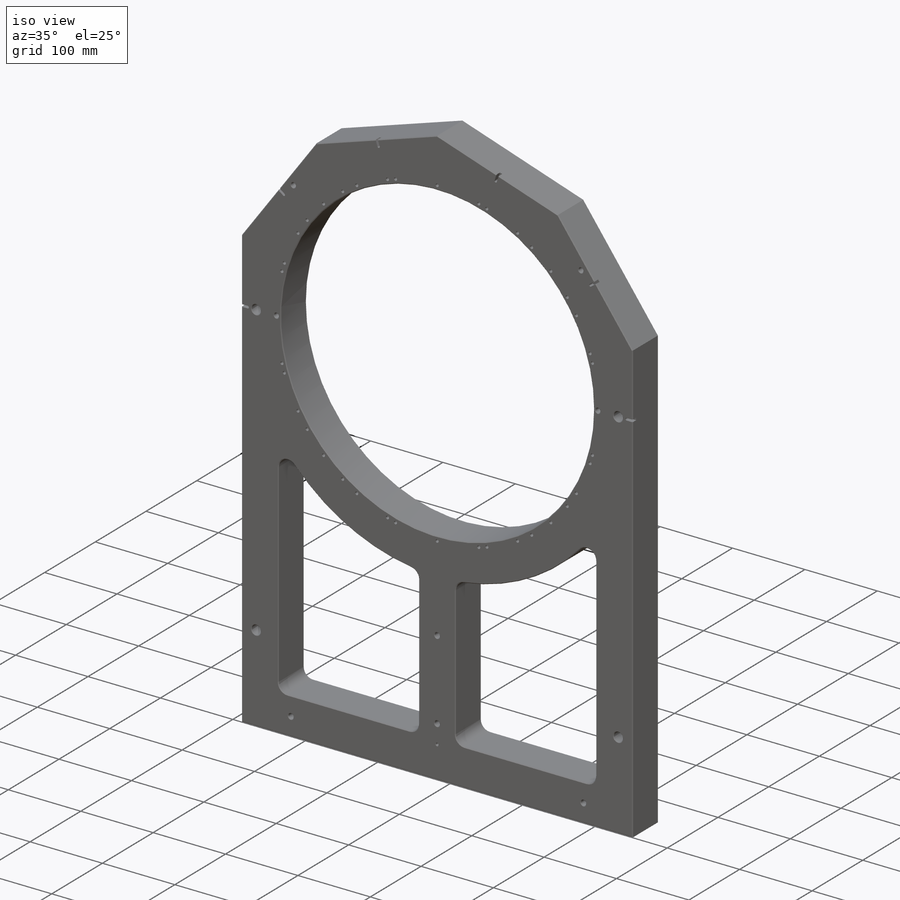
[diagram: iso view]
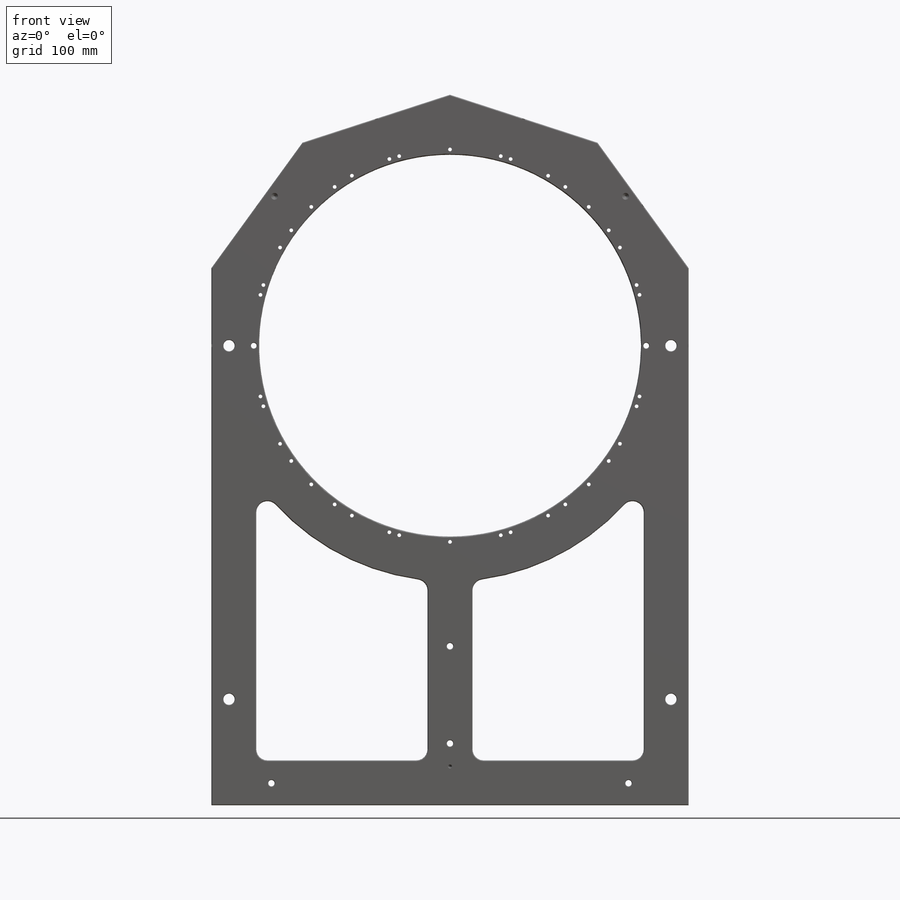
[diagram: front view]
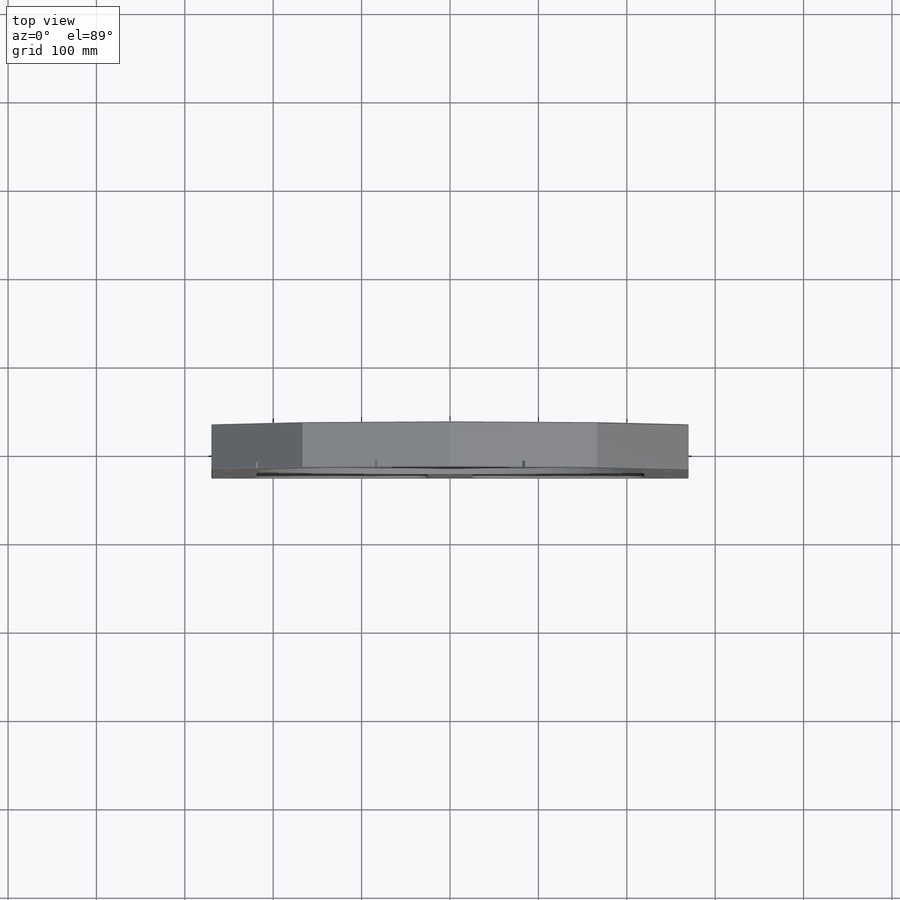
[diagram: top view]
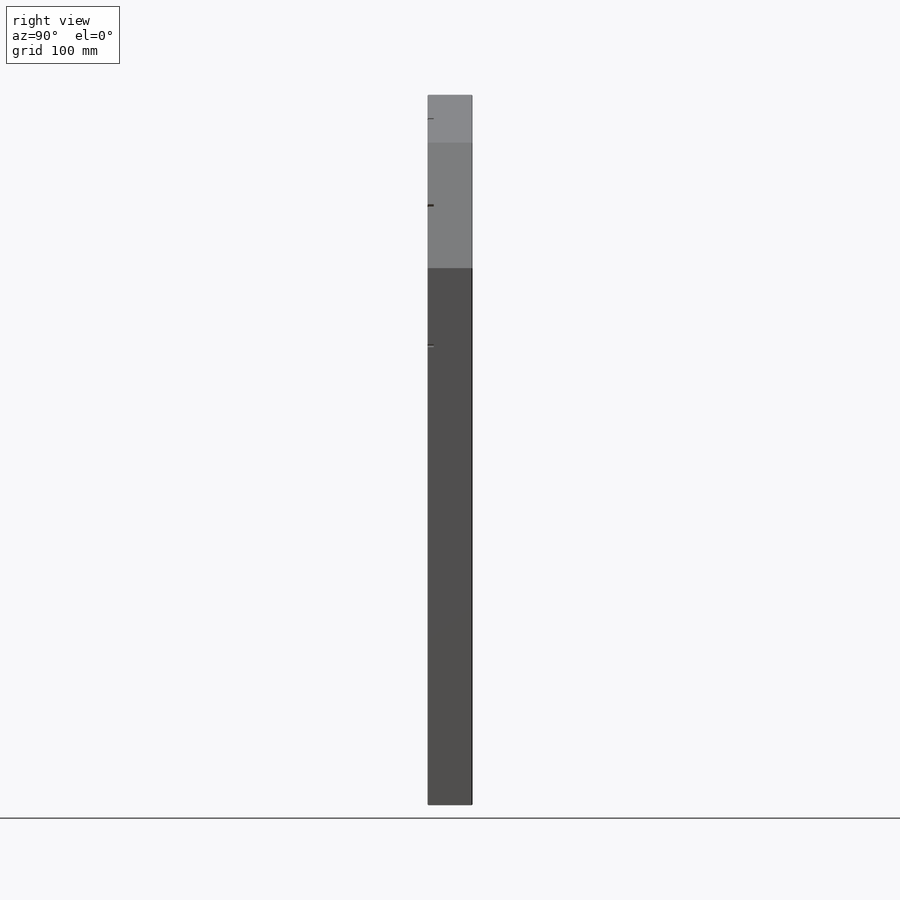
[diagram: right view]
SOLIDWORKS PART (.sldprt)
format: sldprt  version: not decoded by parser v0  size: 2,588,160 bytes
history: native  units: mm
features: sketch x43, hole x11, cut_extrude x8, thread x7, chamfer x4, pattern_circular x4, mirror x3, fillet x2, material x1, extrude x1 (+11 scaffold rows collapsed)
feature tree (95):
  scaffold x11  (default folders/planes/origin — collapsed)
  material  "6061 Alloy"
  sketch  "Sketch1"  dims[c1.D1=432.4mm c1.D2=203.2mm c1.D3=~615.213583mm c2.D3=~178.873015deg c3.D3=50.8mm c3.D2=820.0mm c4.D3=520.0mm c4.D4=540.0mm]
  extrude  "Extrude1"  Depth=50.8mm
  sketch  "center line holes"  dims[c1.D1=254.0mm c1.D2=229.0mm c2.D1=250.0mm c2.D2=235.0mm c2.D3=400.0mm]
  hole  "1/2 (0.5) Diameter Hole1"  Diameter=12.7mm Depth=50.8mm
  sketch  "Sketch425"
  sketch  "Sketch424"  dims[hole-wizard template sketch: 46 standard entries collapsed; hole parameters kept: c15.Thru Hole Dia.=12.7mm c15.Thru Hole Depth=50.8mm c15.Near C'Sink Dia.=13.97mm c15.D4=~3.666174mm c15.Near C'Sink Angle=90.0deg c15.Far C'Sink Dia.=13.97mm c15.D6=~9.919017mm c15.Far C'Sink Angle=90.0deg]
  sketch  "Sketch426"  dims[D1=17.0mm]
  cut_extrude  "Cut-Extrude1"  Depth=2mm
  chamfer  "Chamfer4"  Distance=0.5mm Angle=45deg
  hole  "Tapped Hole for 1/4-28 Helicoil2"  Diameter=6.6294mm Depth=28.22mm
  sketch  "3DSketch5"
  sketch  "Sketch12"  dims[hole-wizard template sketch: 39 standard entries collapsed; hole parameters kept: c13.Tap Drill Dia.=6.6294mm c13.Tap Drill Depth=28.22mm c13.Near C'Sink Dia.=8.8773mm c13.D4=~33.297463mm c13.Near C'Sink Angle=90.0deg c14.D5=~14.816244mm c14.Drill Angle=118.0deg]
  thread  "Hole Thread3"  Diameter=52.58mm  [1 undecoded]
  thread  "Hole Thread4"  Diameter=52.58mm  [1 undecoded]
  sketch  "Sketch13"  dims[D1=70.0mm D2=110.0mm]
  hole  "CBORE for 1/4 Socket Head Cap Screw2"  Diameter=7.14248mm Depth=50.8mm
  sketch  "3DSketch6"
  sketch  "Sketch14"  dims[hole-wizard template sketch: 42 standard entries collapsed; hole parameters kept: c12.Thru Hole Depth=50.8mm c12.C'Bore Dia.=11.1125mm c12.C'Bore Depth=6.35mm c12.Far C'Sink Dia.=~8.41248mm c12.D6=~2.963249mm c12.Far C'Sink Angle=90.0deg]
  sketch  "Sketch15"  dims[D1=25.0mm D2=68.0mm]
  hole  "CBORE for 1/4 Socket Head Cap Screw3"  Diameter=7.14248mm Depth=50.8mm
  sketch  "3DSketch7"
  sketch  "Sketch16"  dims[hole-wizard template sketch: 42 standard entries collapsed; hole parameters kept: c12.Thru Hole Depth=50.8mm c12.C'Bore Dia.=11.1125mm c12.C'Bore Depth=6.35mm c12.Far C'Sink Dia.=~8.41248mm c12.D6=~2.963249mm c12.Far C'Sink Angle=90.0deg]
  sketch  "tooling ball locations"  dims[c1.D1=15.0mm c1.D2=350.0mm c1.D3=115.0mm c2.D2=50.0mm c2.D3=405.0mm c2.D1=255.0mm]
  sketch  "Sketch23"
  sketch  "Sketch25"  dims[D1=280.0mm]
  sketch  "Sketch28"  dims[c1.D1=235.0mm c1.D2=~56.688839mm c2.D2=20.0deg]
  hole  "1/4 Clearance Hole1"  Diameter=7.14248mm Depth=60mm
  sketch  "3DSketch14"
  sketch  "Sketch29"  dims[hole-wizard template sketch: 47 standard entries collapsed; hole parameters kept: c15.Thru Hole Depth=60.0mm c15.Near C'Sink Dia.=~8.41248mm c15.D4=~3.666174mm c15.Near C'Sink Angle=90.0deg c15.Far C'Sink Dia.=~8.41248mm c15.D6=~9.919017mm c15.Far C'Sink Angle=90.0deg]
  hole  "Hole4"  Diameter=20mm Depth=100mm
  sketch  "3DSketch15"
  sketch  "Sketch30"  dims[c1.Hole Ø=20.0mm c1.Depth=100.0mm c1.Drill Angle=118.0deg c1.C.Sink Angle=90.0deg c1.C.Bore Ø=40.0mm c1.C.Bore Depth=20.0mm c1.Diameter=10351.0mm c2.Depth=15.0mm c2.C-Bore Diameter=16.0mm c2.C-Bore Depth=1.6002mm c2.Drill Angle=118.0deg]
  sketch  "Sketch31"  dims[D1=~63.672388mm]
  cut_extrude  "Extrude4"  [1 undecoded]
  sketch  "Sketch421"  dims[D1=44.0mm]
  hole  "1/8 (0.125) Diameter Hole1"  Diameter=3.175mm Depth=12.7mm
  sketch  "Sketch419"
  sketch  "Sketch418"  dims[hole-wizard template sketch: 39 standard entries collapsed; hole parameters kept: c13.Hole Dia.=3.175mm c13.Hole Depth=12.7mm c13.Near C'Sink Dia.=4.445mm c13.D4=~33.297463mm c13.Near C'Sink Angle=90.0deg c14.D5=~14.816244mm c14.Drill Angle=118.0deg]
  sketch  "Sketch32"  dims[D1=3.1877mm D2=10.0mm]
  cut_extrude  "Extrude5"  Depth=7mm
  fillet  "Fillet1"  Radius=1.5875mm
  pattern_circular  "CirPattern1"  Count=10 Angle=360deg
  sketch  "Sketch33"  dims[c1.D1=94.0mm c1.D2=158.0mm c1.D3=~233.017347mm c2.D3=~38.572305deg]
  sketch  "Sketch34"  dims[D1=10.0mm D2=20.0mm]
  hole  "Tapped Hole for 1/4-28 Helicoil6"  Diameter=6.6294mm Depth=28.22mm
  sketch  "3DSketch16"
  sketch  "Sketch35"  dims[hole-wizard template sketch: 39 standard entries collapsed; hole parameters kept: c13.Tap Drill Dia.=6.6294mm c13.Tap Drill Depth=28.22mm c13.Near C'Sink Dia.=7.62mm c13.D4=~33.297463mm c13.Near C'Sink Angle=90.0deg c14.D5=~14.816244mm c14.Drill Angle=118.0deg]
  thread  "Hole Thread11"  Diameter=17.98mm  [1 undecoded]
  mirror  "Mirror4"
  sketch  "Sketch44"  dims[D1=50.8mm D2=50.8mm D3=50.8mm D4=50.8mm]
  cut_extrude  "Extrude11"  [1 undecoded]
  fillet  "Fillet3"  Radius=12.7mm
  chamfer  "Chamfer2"  Distance=1mm Angle=45deg
  mirror  "Mirror6"
  chamfer  "Chamfer1"  Distance=1mm Angle=45deg
  chamfer  "Chamfer3"  Distance=1mm Angle=45deg
  sketch  "Sketch45"  dims[D1=200.0mm D2=175.0mm D3=470.0mm D4=530.0mm D5=564.0mm]
  sketch  "Sketch36"  dims[D1=15.0mm]
  cut_extrude  "Extrude21"  Depth=2mm
  sketch  "Sketch4"  dims[D1=~10.31875mm]
  cut_extrude  "Extrude31"  Depth=13mm
  sketch  "Sketch37"  dims[D1=15.0mm]
  cut_extrude  "Extrude22"  Depth=2mm
  sketch  "Sketch47"  dims[D1=~10.31875mm]
  cut_extrude  "Extrude32"  Depth=13mm
  hole  "Tapped Hole for 1/4-28 Helicoil7"  Diameter=6.6294mm Depth=28.22mm
  sketch  "3DSketch17"
  sketch  "Sketch48"  dims[hole-wizard template sketch: 46 standard entries collapsed; hole parameters kept: c15.Tap Drill Dia.=6.6294mm c15.Tap Drill Depth=28.22mm c15.D3=~14.816244mm c15.Drill Angle=118.0deg]
  thread  "Hole Thread12"  Diameter=22.58mm  [1 undecoded]
  thread  "Hole Thread13"  Diameter=22.58mm  [1 undecoded]
  thread  "Hole Thread14"  Diameter=22.58mm  [1 undecoded]
  thread  "Hole Thread15"  Diameter=22.58mm  [1 undecoded]
  sketch  "bolt circle"  dims[D1=444.0mm D2=~9.618873mm]
  hole  "Ø4.2 (4.2) Diameter Hole1"  Diameter=4.2mm Depth=50.8mm
  sketch  "Sketch423"
  sketch  "Sketch422"  dims[hole-wizard template sketch: 46 standard entries collapsed; hole parameters kept: c15.Thru Hole Dia.=4.2mm c15.Thru Hole Depth=50.8mm c15.Near C'Sink Dia.=4.25mm c15.D4=~3.666174mm c15.Near C'Sink Angle=90.0deg c15.Far C'Sink Dia.=4.25mm c15.D6=~9.919017mm c15.Far C'Sink Angle=90.0deg]
  pattern_circular  "CirPattern2"  Count=20 Angle=360deg
  pattern_circular  "CirPattern3"  Count=12 Angle=360deg
  hole  "1/4 (0.25) Diameter Hole2"  Diameter=6.35mm Depth=50.8mm
  sketch  "Sketch415"
  sketch  "Sketch414"  dims[hole-wizard template sketch: 46 standard entries collapsed; hole parameters kept: c15.Thru Hole Dia.=6.35mm c15.Thru Hole Depth=50.8mm c15.Near C'Sink Dia.=7.62mm c15.D4=~3.666174mm c15.Near C'Sink Angle=90.0deg c15.Far C'Sink Dia.=7.62mm c15.D6=~9.919017mm c15.Far C'Sink Angle=90.0deg]
  mirror  "Mirror7"
  pattern_circular  "CirPattern4"  Count=24 Angle=360deg
decode coverage: 66 of 83 modeling features carry decoded parameters
note: ~ marks probable driven/reference dimensions
note: 9 parameter values undecoded
summary: Diameter pulled from absorbed wizard sketch
note: suppression state not decoded; provenance and decode notes live in map.json
